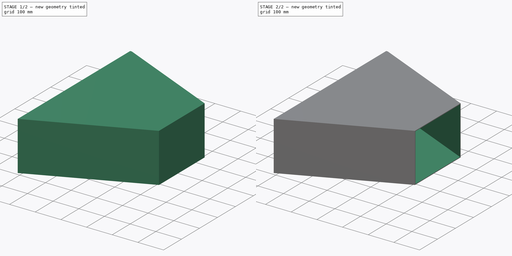
[diagram: build sequence overview — one tinted view per stage of 2, left to right]
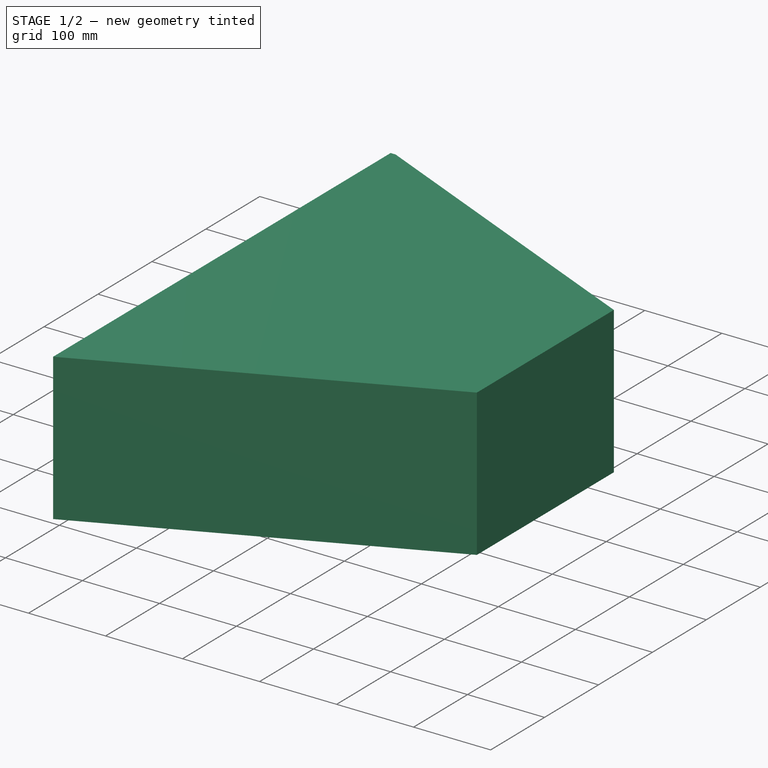
[diagram: stage 1 of 2 — iso view after this stage's code; geometry added in this stage tinted green]
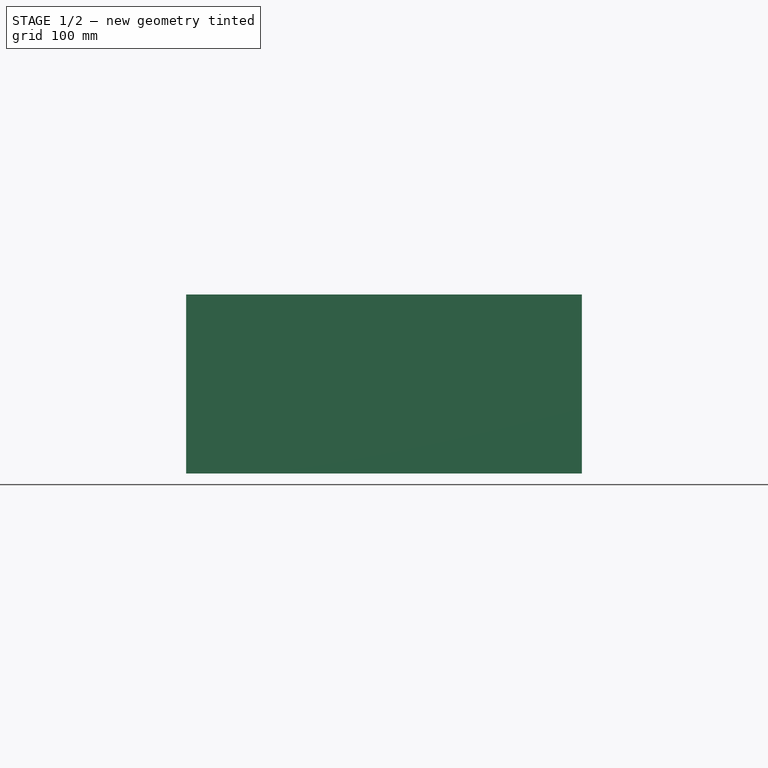
[diagram: stage 1 of 2 — front view after this stage's code; geometry added in this stage tinted green]
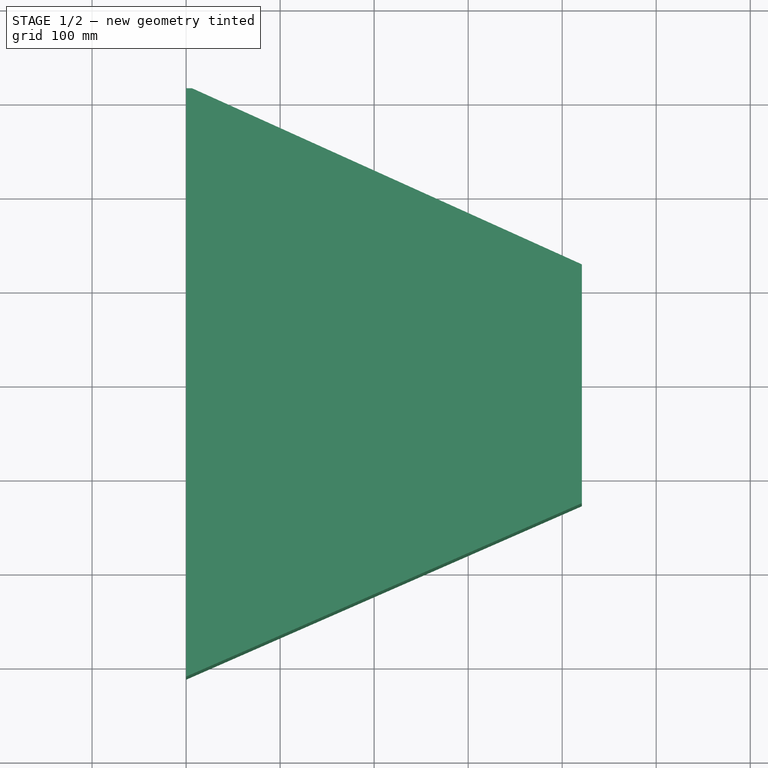
[diagram: stage 1 of 2 — top view after this stage's code; geometry added in this stage tinted green]
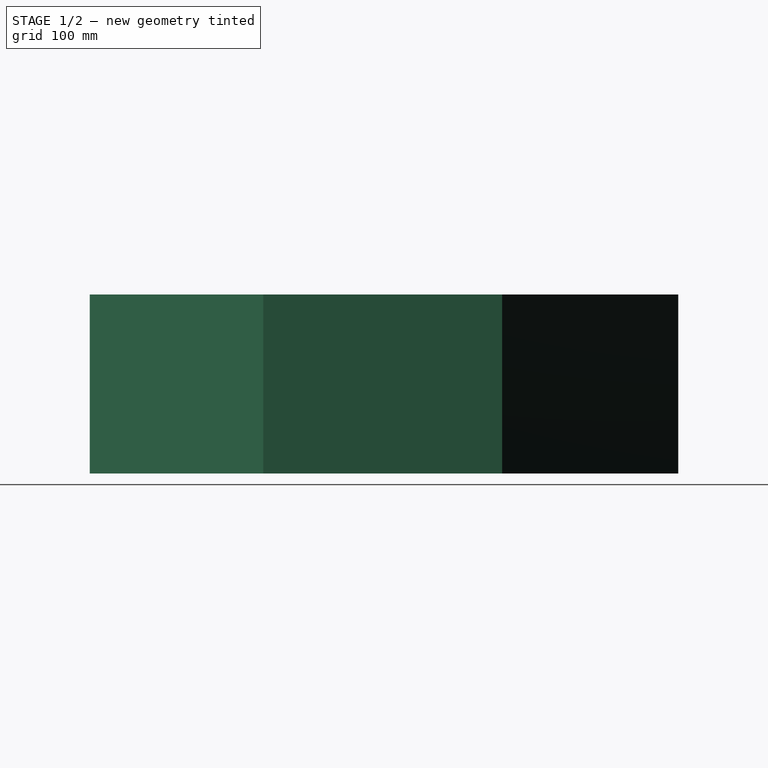
[diagram: stage 1 of 2 — right view after this stage's code; geometry added in this stage tinted green]
FCSTD DOCUMENT  (FreeCAD 1.0R39109 (Git))
Label: reducer
License: All rights reserved
LicenseURL: http://en.wikipedia.org/wiki/All_rights_reserved
objects: Sketcher::SketchObject×1, PartDesign::Pad×1, PartDesign::Thickness×1, PartDesign::Body×1
note: 9 computed .brp shape members not serialized (recipe doc carries the construction recipe); baked Part::Feature solids carry a one-line shape summary decoded from their .brp

FEATURE [Sketcher::SketchObject] Sketch
  ArcFitTolerance = 1e-06
  AttachmentSupport = -> [XY_Plane]
  FullyConstrained = true
  MakeInternals = false
  MapMode = 5
  sketch-geometry (9):
    g0: LineSegment StartX=0 StartY=314.325 StartZ=0 EndX=6.35 EndY=314.325 EndZ=0
    g1: LineSegment StartX=6.35 StartY=314.325 StartZ=0 EndX=420.963 EndY=127 EndZ=0
    g2: LineSegment StartX=420.963 StartY=127 StartZ=0 EndX=420.963 EndY=-127 EndZ=0
    g3: LineSegment StartX=420.963 StartY=-127 StartZ=0 EndX=-6.35 EndY=-314.325 EndZ=0
    g4: LineSegment StartX=-6.35 StartY=-314.325 StartZ=0 EndX=0 EndY=-314.325 EndZ=0
    g5: LineSegment StartX=0 StartY=-314.325 StartZ=0 EndX=0 EndY=314.325 EndZ=0
    g6: LineSegment [constr] StartX=420.963 StartY=127 StartZ=0 EndX=533.4 EndY=76.2 EndZ=0
    g7: LineSegment [constr] StartX=533.4 StartY=76.2 StartZ=0 EndX=533.4 EndY=-76.2 EndZ=0
    g8: LineSegment [constr] StartX=533.4 StartY=-76.2 StartZ=0 EndX=420.963 EndY=-127 EndZ=0
  constraints (25):
    c: PointOnObject(g0,g-2)
    c: Horizontal(g0)
    c: Coincident(g0,g1)
    c: Coincident(g3,g4)
    c: Coincident(g4,g5)
    c: Coincident(g5,g0)
    c: Equal(g0,g4)
    c: Horizontal(g4)
    c: DistanceY(g5,g5) = 628.65
    c: DistanceX(g0,g0) = 6.35
    c: Symmetric(g2,g2,g-1)
    c: Symmetric(g0,g4,g-1)
    c: Angle(g1,g-1) = 0.424356
    c: Coincident(g2,g3)
    c: Coincident(g1,g2)
    c: Coincident(g6,g1)
    c: Coincident(g7,g6)
    c: Coincident(g8,g7)
    c: Coincident(g8,g2)
    c: Symmetric(g6,g7,g-1)
    c: DistanceY(g7,g7) = 152.4
    c: Parallel(g6,g1)
    c: DistanceX(g0,g6) = 533.4
    c: DistanceY(g2,g1) = 254
    c: DistanceX(g2,g7) = 112.437
FEATURE [PartDesign::Pad] Pad
  Direction = (0,0,1)
  Length = 190.5
  Length2 = 10
  Midplane = true
  Profile = -> Sketch
  ReferenceAxis = -> Sketch [N_Axis]
  Suppressed = false
  Type = 0
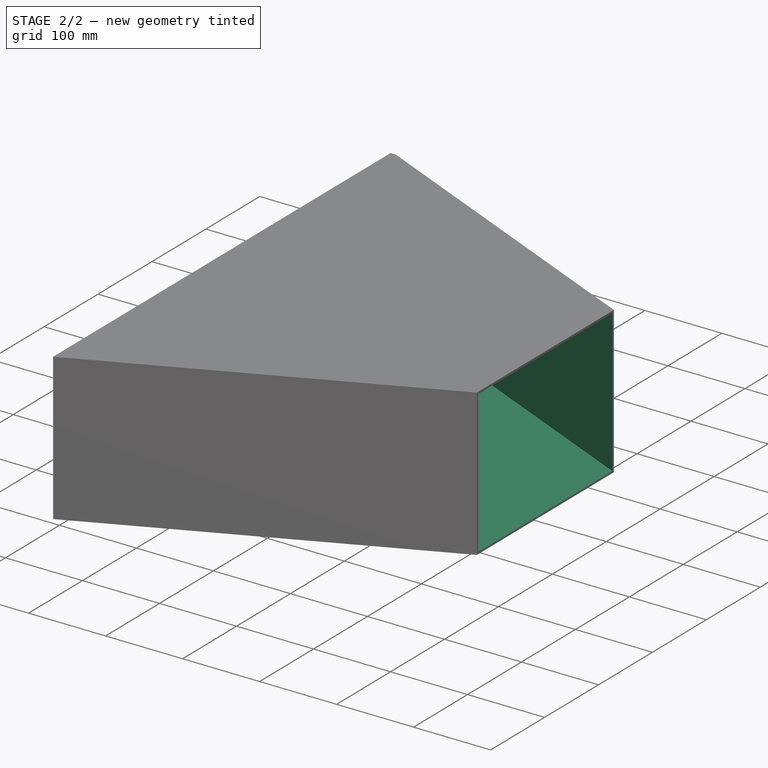
[diagram: stage 2 of 2 — iso view after this stage's code; geometry added in this stage tinted green]
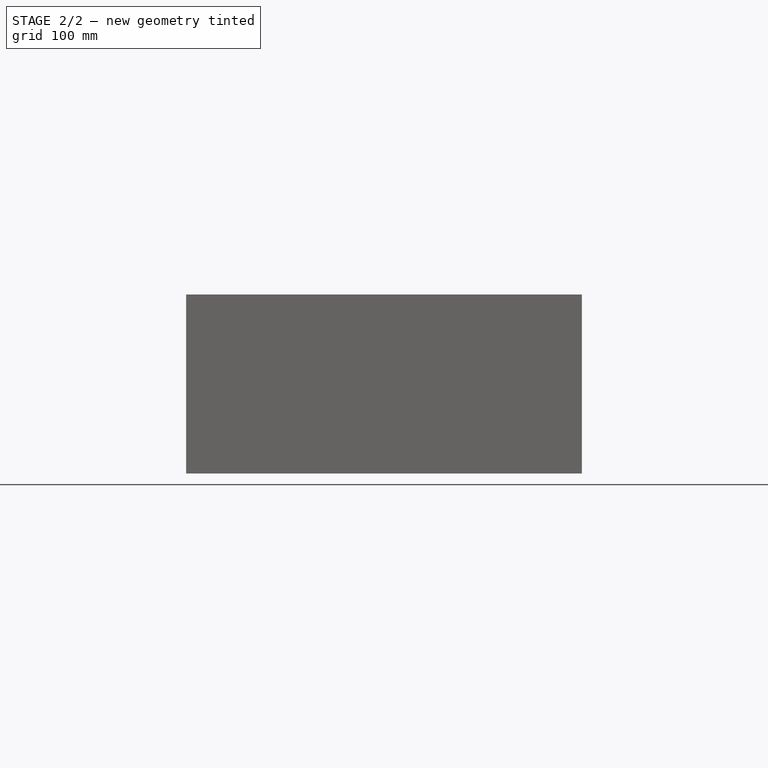
[diagram: stage 2 of 2 — front view after this stage's code; geometry added in this stage tinted green]
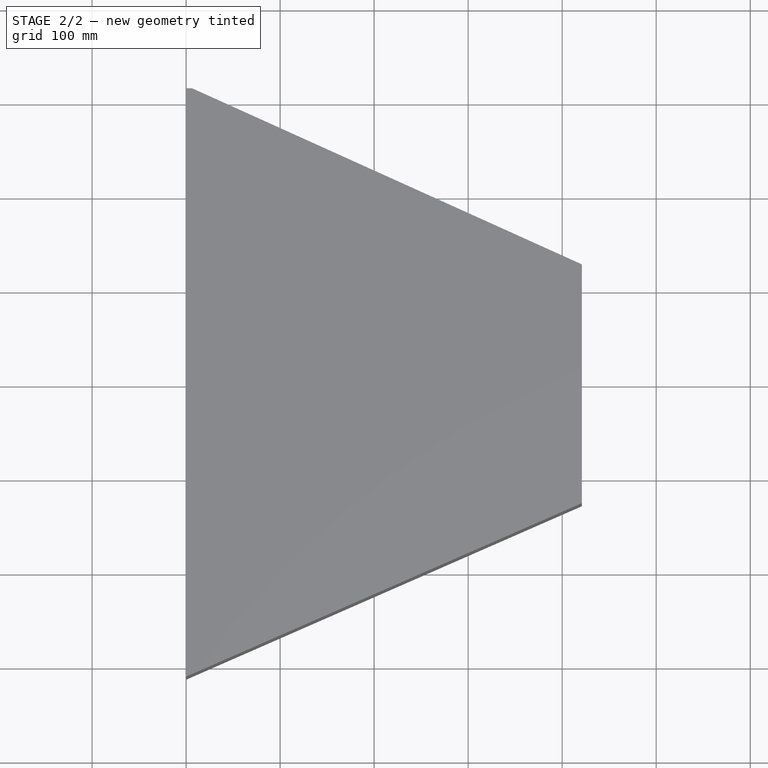
[diagram: stage 2 of 2 — top view after this stage's code; geometry added in this stage tinted green]
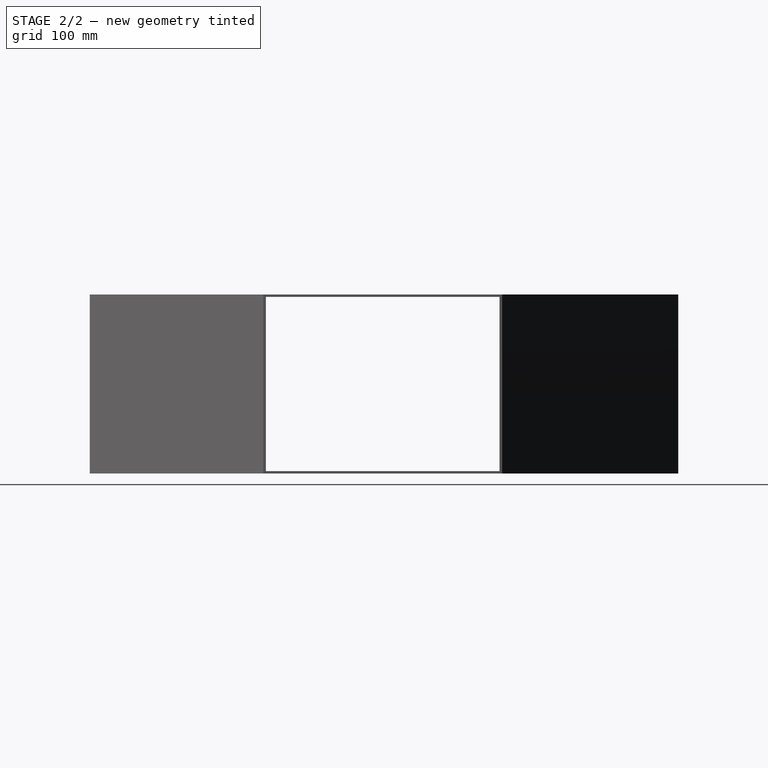
[diagram: stage 2 of 2 — right view after this stage's code; geometry added in this stage tinted green]
FEATURE [PartDesign::Thickness] Thickness
  Base = -> Pad [Face6,Face1]
  BaseFeature = -> Pad
  Intersection = false
  Join = 0
  Mode = 0
  Reversed = true
  SupportTransform = false
  Suppressed = false
  Value = 2.54
FEATURE [PartDesign::Body] Body
  AllowCompound = false
  Group = -> [Sketch,Pad,Thickness]
  Origin = -> Origin
  Tip = -> Thickness
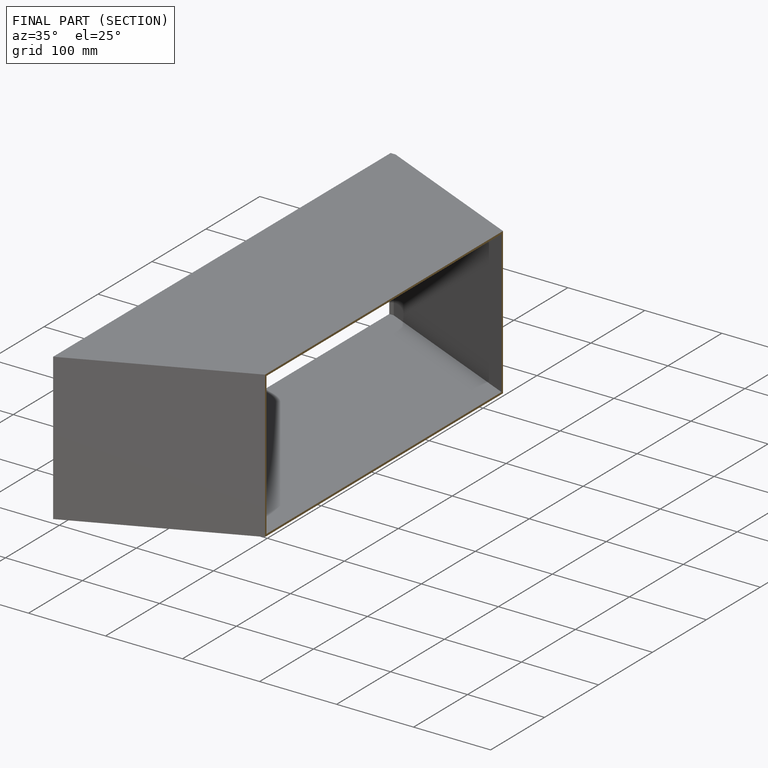
[diagram: finished part — half-section view (interior)]
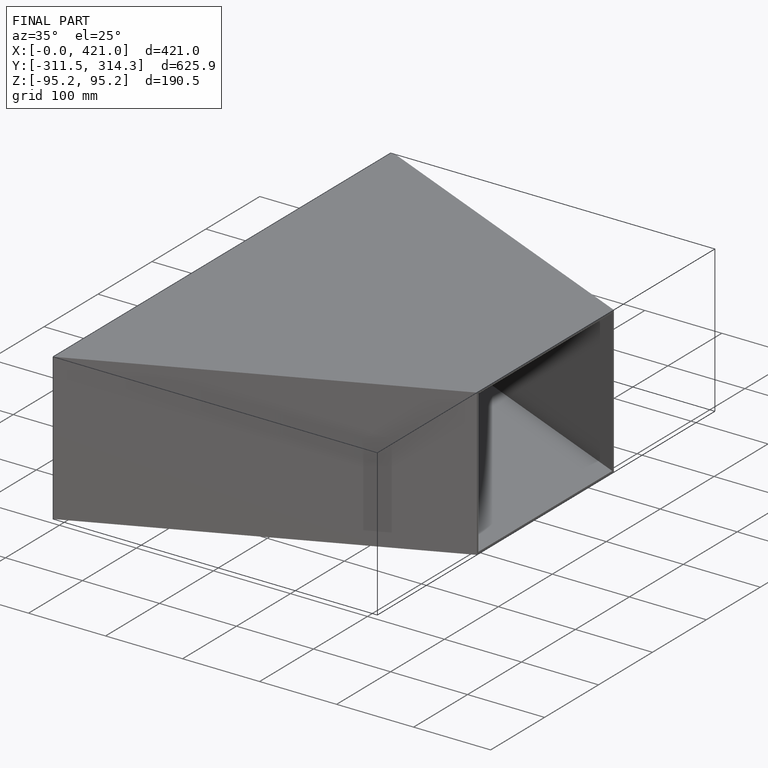
[diagram: finished part — iso view with bounding-box wireframe]
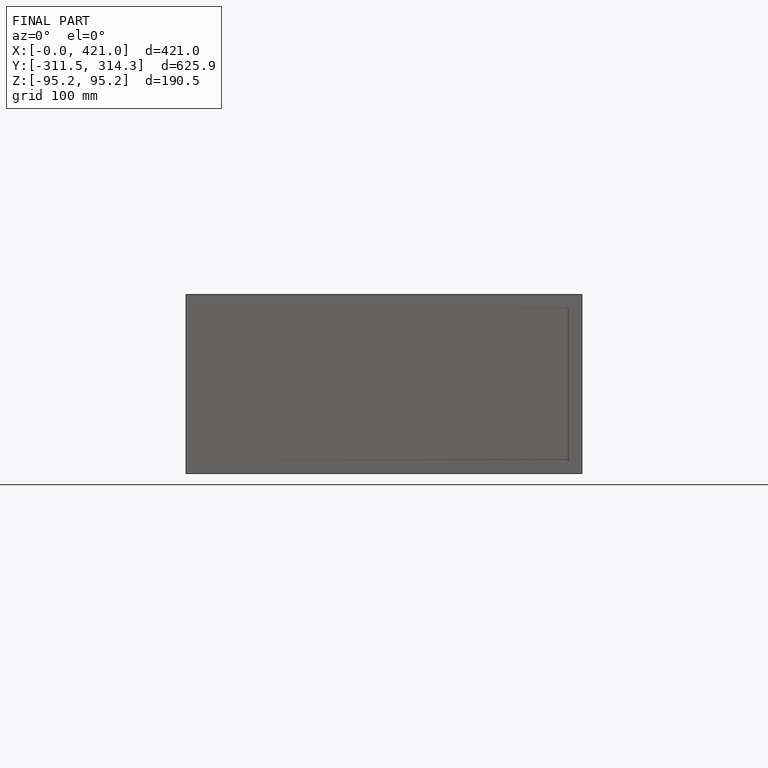
[diagram: finished part — front view with bounding-box wireframe]
